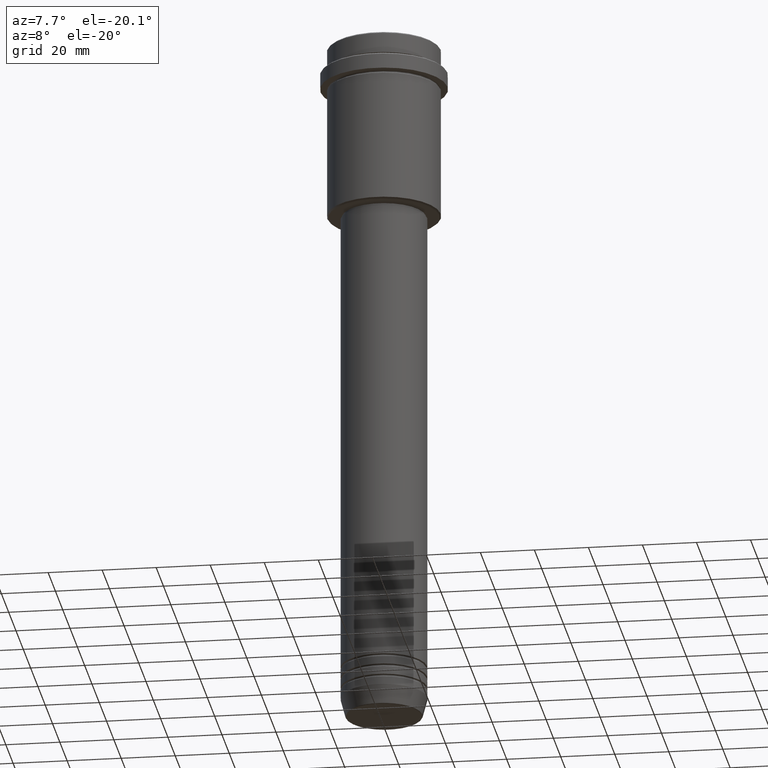
[diagram: clean part render]
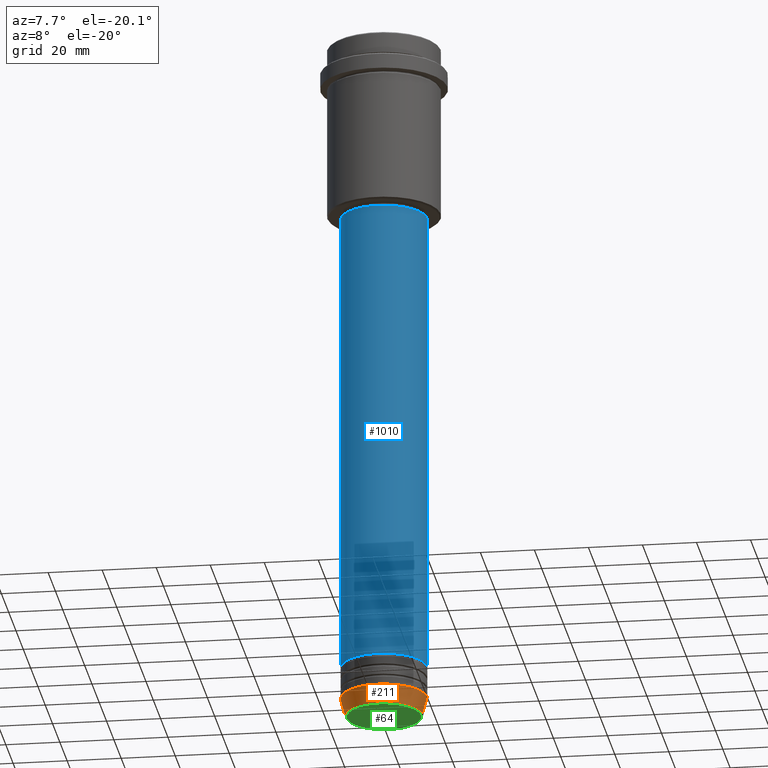
[diagram: same view with three faces highlighted in distinct colors, each labeled with its STEP entity id]
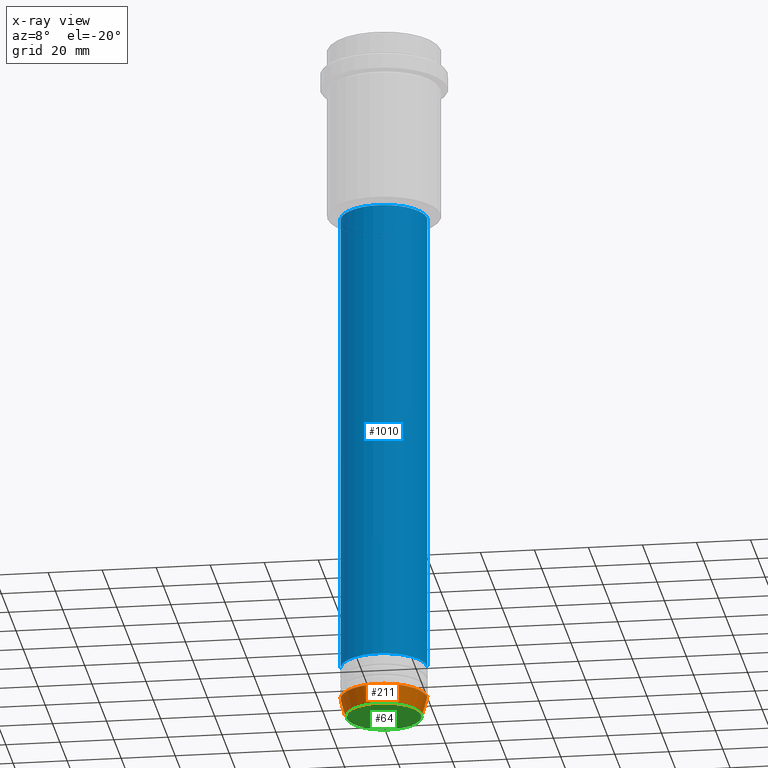
[diagram: x-ray of the same camera — body ghosted, the three highlighted faces saturated]
A machine part, auxiliary view with three faces highlighted in distinct colors.
The next image is the same camera in x-ray (body ghosted, the three faces saturated) — at least one of them is partly hidden behind the body in this view.
Their STEP definitions:

[orange] entity #211 — the highlighted conical surface has half-angle 15 deg.
#13 = ORIENTED_EDGE ( 'NONE', *, *, #165, .T. ) ;
#95 = DIRECTION ( 'NONE',  ( -0.000000000000000000, -0.000000000000000000, 1.000000000000000000 ) ) ;
#120 = DIRECTION ( 'NONE',  ( -0.2588190451025213501, 3.169619151431772337E-17, 0.9659258262890680902 ) ) ;
#126 = ORIENTED_EDGE ( 'NONE', *, *, #419, .F. ) ;
#147 = AXIS2_PLACEMENT_3D ( 'NONE', #299, #95, #616 ) ;
#165 = EDGE_CURVE ( 'NONE', #647, #1083, #1015, .T. ) ;
#168 = CARTESIAN_POINT ( 'NONE',  ( 14.22365507213718772, 0.000000000000000000, -259.6294095225512706 ) ) ;
#211 = ADVANCED_FACE ( 'NONE', ( #502 ), #921, .T. ) ;
#223 = CARTESIAN_POINT ( 'NONE',  ( -16.00000000000000000, 1.959434878635765131E-15, -253.0000000000000000 ) ) ;
#299 = CARTESIAN_POINT ( 'NONE',  ( 0.000000000000000000, 0.000000000000000000, -253.0000000000000000 ) ) ;
#358 = AXIS2_PLACEMENT_3D ( 'NONE', #1092, #1190, #1409 ) ;
#378 = CARTESIAN_POINT ( 'NONE',  ( 0.000000000000000000, 0.000000000000000000, -259.6294095225512706 ) ) ;
#404 = CARTESIAN_POINT ( 'NONE',  ( -14.22365507213718772, 1.850665122131323337E-15, -259.6294095225512706 ) ) ;
#419 = EDGE_CURVE ( 'NONE', #647, #1275, #1201, .T. ) ;
#502 = FACE_OUTER_BOUND ( 'NONE', #850, .T. ) ;
#504 = VERTEX_POINT ( 'NONE', #575 ) ;
#575 = CARTESIAN_POINT ( 'NONE',  ( 16.00000000000000000, 0.000000000000000000, -253.0000000000000000 ) ) ;
#616 = DIRECTION ( 'NONE',  ( 1.000000000000000000, 0.000000000000000000, 0.000000000000000000 ) ) ;
#647 = VERTEX_POINT ( 'NONE', #404 ) ;
#653 = AXIS2_PLACEMENT_3D ( 'NONE', #378, #742, #1174 ) ;
#742 = DIRECTION ( 'NONE',  ( -0.000000000000000000, -0.000000000000000000, 1.000000000000000000 ) ) ;
#754 = LINE ( 'NONE', #1111, #1089 ) ;
#850 = EDGE_LOOP ( 'NONE', ( #126, #13, #1171, #1322 ) ) ;
#872 = EDGE_CURVE ( 'NONE', #1275, #504, #1229, .T. ) ;
#887 = EDGE_CURVE ( 'NONE', #1083, #504, #754, .T. ) ;
#921 = CONICAL_SURFACE ( 'NONE', #147, 16.00000000000000000, 0.2617993877991500740 ) ;
#960 = CARTESIAN_POINT ( 'NONE',  ( -16.00000000000000000, 1.959434878635765131E-15, -253.0000000000000000 ) ) ;
#1014 = DIRECTION ( 'NONE',  ( 0.2588190451025213501, 0.000000000000000000, 0.9659258262890680902 ) ) ;
#1015 = CIRCLE ( 'NONE', #653, 14.22365507213718772 ) ;
#1083 = VERTEX_POINT ( 'NONE', #168 ) ;
#1089 = VECTOR ( 'NONE', #1014, 1000.000000000000000 ) ;
#1092 = CARTESIAN_POINT ( 'NONE',  ( 0.000000000000000000, 0.000000000000000000, -253.0000000000000000 ) ) ;
#1111 = CARTESIAN_POINT ( 'NONE',  ( 16.00000000000000000, 0.000000000000000000, -253.0000000000000000 ) ) ;
#1171 = ORIENTED_EDGE ( 'NONE', *, *, #887, .T. ) ;
#1174 = DIRECTION ( 'NONE',  ( 1.000000000000000000, 0.000000000000000000, 0.000000000000000000 ) ) ;
#1190 = DIRECTION ( 'NONE',  ( -0.000000000000000000, -0.000000000000000000, 1.000000000000000000 ) ) ;
#1201 = LINE ( 'NONE', #223, #1202 ) ;
#1202 = VECTOR ( 'NONE', #120, 1000.000000000000000 ) ;
#1229 = CIRCLE ( 'NONE', #358, 16.00000000000000000 ) ;
#1275 = VERTEX_POINT ( 'NONE', #960 ) ;
#1322 = ORIENTED_EDGE ( 'NONE', *, *, #872, .F. ) ;
#1409 = DIRECTION ( 'NONE',  ( 1.000000000000000000, 0.000000000000000000, 0.000000000000000000 ) ) ;

[blue] entity #1010 — the highlighted cylindrical surface (partial cylindrical patch) has radius 16 mm, axis along (-0, -0, 1).
#33 = LINE ( 'NONE', #1237, #565 ) ;
#52 = DIRECTION ( 'NONE',  ( -0.000000000000000000, -0.000000000000000000, 1.000000000000000000 ) ) ;
#65 = ORIENTED_EDGE ( 'NONE', *, *, #689, .F. ) ;
#101 = EDGE_CURVE ( 'NONE', #892, #500, #720, .T. ) ;
#144 = DIRECTION ( 'NONE',  ( -0.000000000000000000, -0.000000000000000000, 1.000000000000000000 ) ) ;
#273 = CARTESIAN_POINT ( 'NONE',  ( -16.00000000000000000, 1.959434878635765131E-15, 0.000000000000000000 ) ) ;
#372 = CYLINDRICAL_SURFACE ( 'NONE', #1047, 16.00000000000000000 ) ;
#412 = LINE ( 'NONE', #273, #1395 ) ;
#433 = VERTEX_POINT ( 'NONE', #1002 ) ;
#500 = VERTEX_POINT ( 'NONE', #1011 ) ;
#565 = VECTOR ( 'NONE', #835, 1000.000000000000000 ) ;
#689 = EDGE_CURVE ( 'NONE', #1373, #433, #925, .T. ) ;
#712 = CARTESIAN_POINT ( 'NONE',  ( 0.000000000000000000, 0.000000000000000000, -66.00000000000000000 ) ) ;
#720 = CIRCLE ( 'NONE', #827, 16.00000000000000000 ) ;
#725 = ORIENTED_EDGE ( 'NONE', *, *, #1076, .F. ) ;
#782 = CARTESIAN_POINT ( 'NONE',  ( -16.00000000000000355, 1.959434878635765526E-15, -66.00000000000000000 ) ) ;
#807 = DIRECTION ( 'NONE',  ( 1.000000000000000000, 0.000000000000000000, 0.000000000000000000 ) ) ;
#827 = AXIS2_PLACEMENT_3D ( 'NONE', #1147, #52, #1141 ) ;
#835 = DIRECTION ( 'NONE',  ( -0.000000000000000000, -0.000000000000000000, 1.000000000000000000 ) ) ;
#892 = VERTEX_POINT ( 'NONE', #1230 ) ;
#925 = CIRCLE ( 'NONE', #1180, 16.00000000000000355 ) ;
#1002 = CARTESIAN_POINT ( 'NONE',  ( 16.00000000000000355, 0.000000000000000000, -66.00000000000000000 ) ) ;
#1010 = ADVANCED_FACE ( 'NONE', ( #1025 ), #372, .T. ) ;
#1011 = CARTESIAN_POINT ( 'NONE',  ( 16.00000000000000000, 0.000000000000000000, -240.9999999999999147 ) ) ;
#1025 = FACE_OUTER_BOUND ( 'NONE', #1309, .T. ) ;
#1041 = DIRECTION ( 'NONE',  ( 1.000000000000000000, 0.000000000000000000, 0.000000000000000000 ) ) ;
#1047 = AXIS2_PLACEMENT_3D ( 'NONE', #1343, #144, #807 ) ;
#1051 = EDGE_CURVE ( 'NONE', #500, #433, #33, .T. ) ;
#1076 = EDGE_CURVE ( 'NONE', #892, #1373, #412, .T. ) ;
#1141 = DIRECTION ( 'NONE',  ( 1.000000000000000000, 0.000000000000000000, 0.000000000000000000 ) ) ;
#1146 = DIRECTION ( 'NONE',  ( -0.000000000000000000, -0.000000000000000000, 1.000000000000000000 ) ) ;
#1147 = CARTESIAN_POINT ( 'NONE',  ( 0.000000000000000000, 0.000000000000000000, -240.9999999999999147 ) ) ;
#1180 = AXIS2_PLACEMENT_3D ( 'NONE', #712, #1146, #1041 ) ;
#1230 = CARTESIAN_POINT ( 'NONE',  ( -16.00000000000000000, 1.959434878635765131E-15, -240.9999999999999147 ) ) ;
#1237 = CARTESIAN_POINT ( 'NONE',  ( 16.00000000000000000, 0.000000000000000000, 0.000000000000000000 ) ) ;
#1260 = ORIENTED_EDGE ( 'NONE', *, *, #101, .T. ) ;
#1277 = DIRECTION ( 'NONE',  ( -0.000000000000000000, -0.000000000000000000, 1.000000000000000000 ) ) ;
#1309 = EDGE_LOOP ( 'NONE', ( #725, #1260, #1408, #65 ) ) ;
#1343 = CARTESIAN_POINT ( 'NONE',  ( 0.000000000000000000, 0.000000000000000000, 0.000000000000000000 ) ) ;
#1373 = VERTEX_POINT ( 'NONE', #782 ) ;
#1395 = VECTOR ( 'NONE', #1277, 1000.000000000000000 ) ;
#1408 = ORIENTED_EDGE ( 'NONE', *, *, #1051, .T. ) ;

[green] entity #64 — the highlighted planar face has unit normal (0, -0, 1).
#30 = ORIENTED_EDGE ( 'NONE', *, *, #1072, .T. ) ;
#64 = ADVANCED_FACE ( 'NONE', ( #599 ), #275, .F. ) ;
#182 = EDGE_CURVE ( 'NONE', #545, #613, #493, .T. ) ;
#209 = DIRECTION ( 'NONE',  ( 0.000000000000000000, 0.000000000000000000, -1.000000000000000000 ) ) ;
#275 = PLANE ( 'NONE',  #1106 ) ;
#319 = ORIENTED_EDGE ( 'NONE', *, *, #182, .T. ) ;
#386 = DIRECTION ( 'NONE',  ( 1.000000000000000000, 0.000000000000000000, 0.000000000000000000 ) ) ;
#465 = CARTESIAN_POINT ( 'NONE',  ( -13.74069215899265828, 1.712322416342415986E-15, -260.0000000000000000 ) ) ;
#493 = CIRCLE ( 'NONE', #1227, 13.74069215899265828 ) ;
#497 = DIRECTION ( 'NONE',  ( 1.000000000000000000, 0.000000000000000000, 0.000000000000000000 ) ) ;
#516 = DIRECTION ( 'NONE',  ( 0.000000000000000000, 0.000000000000000000, -1.000000000000000000 ) ) ;
#545 = VERTEX_POINT ( 'NONE', #465 ) ;
#599 = FACE_OUTER_BOUND ( 'NONE', #1310, .T. ) ;
#613 = VERTEX_POINT ( 'NONE', #931 ) ;
#641 = DIRECTION ( 'NONE',  ( 1.000000000000000000, 0.000000000000000000, 0.000000000000000000 ) ) ;
#685 = DIRECTION ( 'NONE',  ( 0.000000000000000000, -0.000000000000000000, 1.000000000000000000 ) ) ;
#931 = CARTESIAN_POINT ( 'NONE',  ( 13.74069215899265828, 0.000000000000000000, -260.0000000000000000 ) ) ;
#1020 = CIRCLE ( 'NONE', #1344, 13.74069215899265828 ) ;
#1037 = CARTESIAN_POINT ( 'NONE',  ( 0.000000000000000000, 0.000000000000000000, -260.0000000000000000 ) ) ;
#1072 = EDGE_CURVE ( 'NONE', #613, #545, #1020, .T. ) ;
#1106 = AXIS2_PLACEMENT_3D ( 'NONE', #1037, #685, #386 ) ;
#1187 = CARTESIAN_POINT ( 'NONE',  ( 0.000000000000000000, 0.000000000000000000, -260.0000000000000000 ) ) ;
#1227 = AXIS2_PLACEMENT_3D ( 'NONE', #1187, #209, #641 ) ;
#1257 = CARTESIAN_POINT ( 'NONE',  ( 0.000000000000000000, 0.000000000000000000, -260.0000000000000000 ) ) ;
#1310 = EDGE_LOOP ( 'NONE', ( #30, #319 ) ) ;
#1344 = AXIS2_PLACEMENT_3D ( 'NONE', #1257, #516, #497 ) ;